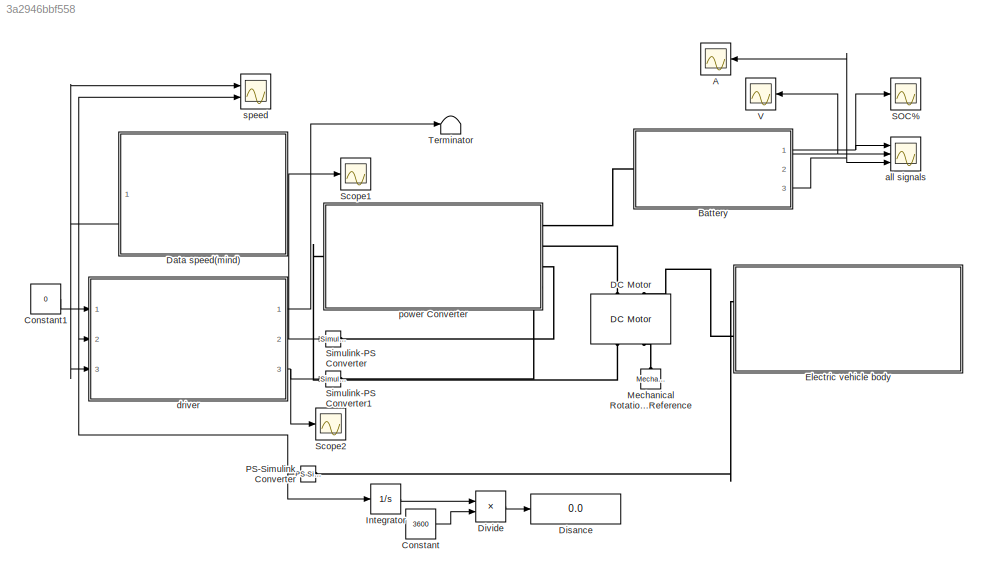
MODEL slx_3a2946bbf558
KIND model
CONFIG AbsTol = auto
CONFIG EnableMultiTasking = off
CONFIG FixedStep = auto
CONFIG MaxStep = auto
CONFIG MinStep = auto
CONFIG RelTol = 1e-3
CONFIG SampleTimeConstraint = Unconstrained
CONFIG Solver = VariableStepAuto
CONFIG SolverName = VariableStepAuto
CONFIG StartTime = 0
CONFIG StopTime = 1369
BLOCK [Scope] A
  Floating = off
  NumInputPorts = 1
  Ports = [1]
  ScopeSpecificationString = Simulink.scopes.TimeScopeBlockCfg('CurrentConfiguration', extmgr.ConfigurationSet(extmgr.Configuration('Core','General UI',true),extmgr.Configuration('Core','Source UI',true),extmgr.Configuration('Sources','WiredSimulink',true,'DataLoggingVariableName','ScopeData4'),extmgr.Configuration('Visuals','Time Domain',true,'SerializedDisplays',{struct('MinYLimReal','-437.65457','MaxYLimReal','640.14136','...<+1465ch>
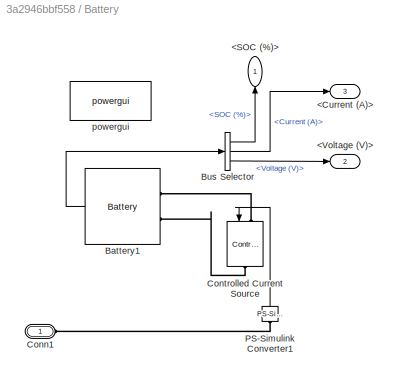
BLOCK [SubSystem] Battery
  Ports = [0, 3, 0, 0, 0, 1]
  RequestExecContextInheritance = off
BLOCK [Outport] Battery/<Current (A)>
  IconDisplay = Port number
  Port = 3
BLOCK [Outport] Battery/<SOC (%)>
  IconDisplay = Port number
BLOCK [Outport] Battery/<Voltage (V)>
  IconDisplay = Port number
  Port = 2
BLOCK [Reference] Battery/Battery1  REF=electricdrivelib/Extra Sources/Battery
  Ports = [0, 1, 0, 0, 0, 2]
  SourceBlock = electricdrivelib/Extra Sources/Battery
  SourceProductBaseCode = PS
  SourceProductName = Simscape Electrical
  SourceType = Battery
BLOCK [BusSelector] Battery/Bus Selector
  OutputAsBus = off
  OutputSignals = SOC (%),Current (A),Voltage (V)
  Ports = [1, 3]
BLOCK [PMIOPort] Battery/Conn1
  Side = Left
BLOCK [Reference] Battery/Controlled Current Source  REF=powerlib/Electrical
Sources/Controlled Current Source
  Ports = [1, 0, 0, 0, 0, 1, 1]
  SourceBlock = powerlib/Electrical\nSources/Controlled Current Source
  SourceProductBaseCode = PS
  SourceProductName = Simscape Electrical
  SourceType = Controlled Current Source
BLOCK [Reference] Battery/PS-Simulink Converter1  REF=nesl_utility/PS-Simulink
Converter
  Ports = [0, 1, 0, 0, 0, 1]
  SourceBlock = nesl_utility/PS-Simulink\nConverter
  SourceProductBaseCode = SS
  SourceProductName = Simscape
  SourceType = PS-Simulink\nConverter
BLOCK [Reference] Battery/powergui  REF=powerlib/powergui
  Ports = []
  Priority = 1
  SourceBlock = powerlib/powergui
  SourceProductBaseCode = PS
  SourceProductName = Simscape Electrical
  SourceType = PSB option menu block
BLOCK [Constant] Constant
  Value = 3600
BLOCK [Constant] Constant1
  Value = 0
BLOCK [Reference] DC Motor  REF=ee_lib/Electromechanical/Brushed Motors/DC Motor
  Ports = [0, 0, 0, 0, 0, 2, 2]
  SourceBlock = ee_lib/Electromechanical/Brushed Motors/DC Motor
  SourceProductBaseCode = PS
  SourceProductName = Simscape Electrical
  SourceType = DC Motor
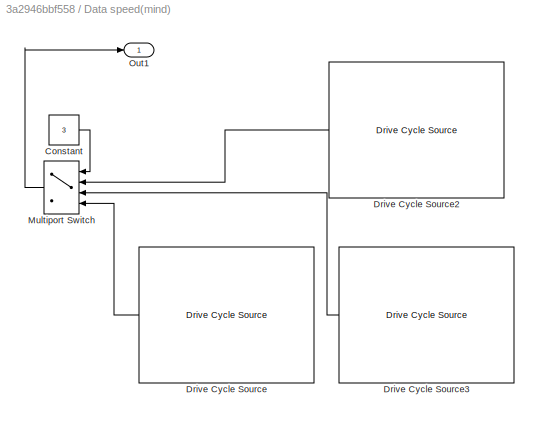
BLOCK [SubSystem] Data speed(mind)
  Ports = [0, 1]
  RequestExecContextInheritance = off
BLOCK [Constant] Data speed(mind)/Constant
  Value = 3
BLOCK [Reference] Data speed(mind)/Drive Cycle Source  REF=autolibshared/Drive Cycle Source
  AttributesFormatString = %<cycleVar> (%<tfinal>)
  Ports = [0, 1]
  SourceBlock = autolibshared/Drive Cycle Source
  SourceProductBaseCode = PW
  SourceProductName = Powertrain Blockset
  SourceType = Drive Cycle Source
BLOCK [Reference] Data speed(mind)/Drive Cycle Source2  REF=autolibshared/Drive Cycle Source
  AttributesFormatString = %<cycleVar> (%<tfinal>)
  Ports = [0, 1]
  SourceBlock = autolibshared/Drive Cycle Source
  SourceProductBaseCode = PW
  SourceProductName = Powertrain Blockset
  SourceType = Drive Cycle Source
BLOCK [Reference] Data speed(mind)/Drive Cycle Source3  REF=autolibshared/Drive Cycle Source
  AttributesFormatString = %<cycleVar> (%<tfinal>)
  Ports = [0, 1]
  SourceBlock = autolibshared/Drive Cycle Source
  SourceProductBaseCode = PW
  SourceProductName = Powertrain Blockset
  SourceType = Drive Cycle Source
BLOCK [MultiPortSwitch] Data speed(mind)/Multiport Switch
  InputSameDT = off
  Ports = [4, 1]
  SaturateOnIntegerOverflow = off
BLOCK [Outport] Data speed(mind)/Out1
  IconDisplay = Port number
BLOCK [Display] Disance
  Decimation = 1
  Ports = [1]
BLOCK [Product] Divide
  InputSameDT = off
  Inputs = */
  OutDataTypeStr = Inherit: Inherit via internal rule
  Ports = [2, 1]
  RndMeth = Floor
  SaturateOnIntegerOverflow = off
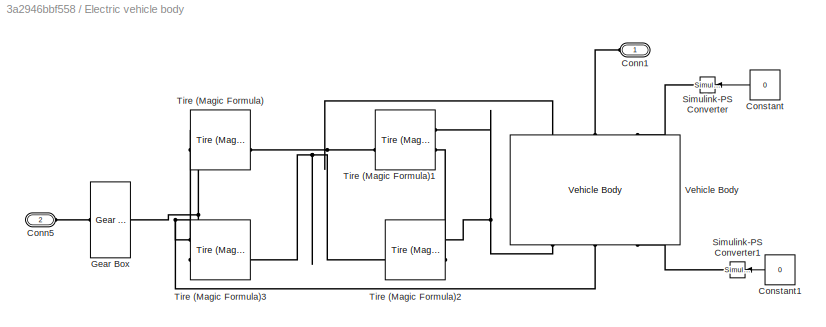
BLOCK [SubSystem] Electric vehicle body
  Ports = [0, 0, 0, 0, 0, 2]
  RequestExecContextInheritance = off
BLOCK [PMIOPort] Electric vehicle body/Conn1
  Side = Left
BLOCK [PMIOPort] Electric vehicle body/Conn5
  Port = 2
  Side = Left
BLOCK [Constant] Electric vehicle body/Constant
  Value = 0
BLOCK [Constant] Electric vehicle body/Constant1
  Value = 0
BLOCK [Reference] Electric vehicle body/Gear Box  REF=fl_lib/Mechanical/Mechanisms/Gear Box
  Ports = [0, 0, 0, 0, 0, 1, 1]
  SourceBlock = fl_lib/Mechanical/Mechanisms/Gear Box
  SourceProductBaseCode = SS
  SourceProductName = Simscape
  SourceType = Gear Box
BLOCK [Reference] Electric vehicle body/Simulink-PS Converter  REF=nesl_utility/Simulink-PS
Converter
  Ports = [1, 0, 0, 0, 0, 0, 1]
  SourceBlock = nesl_utility/Simulink-PS\nConverter
  SourceProductBaseCode = SS
  SourceProductName = Simscape
  SourceType = Simulink-PS\nConverter
BLOCK [Reference] Electric vehicle body/Simulink-PS Converter1  REF=nesl_utility/Simulink-PS
Converter
  Ports = [1, 0, 0, 0, 0, 0, 1]
  SourceBlock = nesl_utility/Simulink-PS\nConverter
  SourceProductBaseCode = SS
  SourceProductName = Simscape
  SourceType = Simulink-PS\nConverter
BLOCK [Reference] Electric vehicle body/Tire (Magic Formula)  REF=sdl_lib/Tires & Vehicles/Tire (Magic Formula)
  Ports = [0, 0, 0, 0, 0, 2, 2]
  SourceBlock = sdl_lib/Tires & Vehicles/Tire (Magic Formula)
  SourceProductBaseCode = LD
  SourceProductName = Simscape Driveline
  SourceType = Tire (Magic Formula)
BLOCK [Reference] Electric vehicle body/Tire (Magic Formula)1  REF=sdl_lib/Tires & Vehicles/Tire (Magic Formula)
  Ports = [0, 0, 0, 0, 0, 2, 2]
  SourceBlock = sdl_lib/Tires & Vehicles/Tire (Magic Formula)
  SourceProductBaseCode = LD
  SourceProductName = Simscape Driveline
  SourceType = Tire (Magic Formula)
BLOCK [Reference] Electric vehicle body/Tire (Magic Formula)2  REF=sdl_lib/Tires & Vehicles/Tire (Magic Formula)
  Ports = [0, 0, 0, 0, 0, 2, 2]
  SourceBlock = sdl_lib/Tires & Vehicles/Tire (Magic Formula)
  SourceProductBaseCode = LD
  SourceProductName = Simscape Driveline
  SourceType = Tire (Magic Formula)
BLOCK [Reference] Electric vehicle body/Tire (Magic Formula)3  REF=sdl_lib/Tires & Vehicles/Tire (Magic Formula)
  Ports = [0, 0, 0, 0, 0, 2, 2]
  SourceBlock = sdl_lib/Tires & Vehicles/Tire (Magic Formula)
  SourceProductBaseCode = LD
  SourceProductName = Simscape Driveline
  SourceType = Tire (Magic Formula)
BLOCK [Reference] Electric vehicle body/Vehicle Body  REF=sdl_lib/Tires & Vehicles/Vehicle Body
  Ports = [0, 0, 0, 0, 0, 3, 3]
  SourceBlock = sdl_lib/Tires & Vehicles/Vehicle Body
  SourceProductBaseCode = LD
  SourceProductName = Simscape Driveline
  SourceType = Vehicle Body
BLOCK [Integrator] Integrator
  Ports = [1, 1]
BLOCK [Reference] Mechanical Rotational Reference  REF=fl_lib/Mechanical/Rotational Elements/Mechanical
Rotational Reference
  Ports = [0, 0, 0, 0, 0, 1]
  SourceBlock = fl_lib/Mechanical/Rotational Elements/Mechanical\nRotational Reference
  SourceProductBaseCode = SS
  SourceProductName = Simscape
  SourceType = Mechanical\nRotational Reference
BLOCK [Reference] PS-Simulink Converter  REF=nesl_utility/PS-Simulink
Converter
  Ports = [0, 1, 0, 0, 0, 1]
  SourceBlock = nesl_utility/PS-Simulink\nConverter
  SourceProductBaseCode = SS
  SourceProductName = Simscape
  SourceType = PS-Simulink\nConverter
BLOCK [Scope] SOC%
  Floating = off
  NumInputPorts = 1
  Ports = [1]
  ScopeSpecificationString = Simulink.scopes.TimeScopeBlockCfg('CurrentConfiguration', extmgr.ConfigurationSet(extmgr.Configuration('Core','General UI',true),extmgr.Configuration('Core','Source UI',true),extmgr.Configuration('Sources','WiredSimulink',true,'DataLoggingVariableName','ScopeData2'),extmgr.Configuration('Visuals','Time Domain',true,'SerializedDisplays',{struct('MinYLimReal','55.77253','MaxYLimReal','104.91416','YL...<+1746ch>
BLOCK [Scope] Scope1
  Floating = off
  NumInputPorts = 1
  Ports = [1]
  ScopeSpecificationString = Simulink.scopes.TimeScopeBlockCfg('CurrentConfiguration', extmgr.ConfigurationSet(extmgr.Configuration('Core','General UI',true),extmgr.Configuration('Core','Source UI',true),extmgr.Configuration('Sources','WiredSimulink',true,'DataLoggingVariableName','ScopeData1'),extmgr.Configuration('Visuals','Time Domain',true,'SerializedDisplays',{struct('MinYLimReal','-0.125','MaxYLimReal','1.125','YLabelRe...<+1412ch>
BLOCK [Scope] Scope2
  Floating = off
  NumInputPorts = 1
  Ports = [1]
  ScopeSpecificationString = Simulink.scopes.TimeScopeBlockCfg('CurrentConfiguration', extmgr.ConfigurationSet(extmgr.Configuration('Core','General UI',true),extmgr.Configuration('Core','Source UI',true),extmgr.Configuration('Sources','WiredSimulink',true,'DataLoggingVariableName','ScopeData4'),extmgr.Configuration('Visuals','Time Domain',true,'SerializedDisplays',{struct('MinYLimReal','-0.11576','MaxYLimReal','1.04184','YLab...<+1468ch>
BLOCK [Reference] Simulink-PS Converter  REF=nesl_utility/Simulink-PS
Converter
  Ports = [1, 0, 0, 0, 0, 0, 1]
  SourceBlock = nesl_utility/Simulink-PS\nConverter
  SourceProductBaseCode = SS
  SourceProductName = Simscape
  SourceType = Simulink-PS\nConverter
BLOCK [Reference] Simulink-PS Converter1  REF=nesl_utility/Simulink-PS
Converter
  Ports = [1, 0, 0, 0, 0, 0, 1]
  SourceBlock = nesl_utility/Simulink-PS\nConverter
  SourceProductBaseCode = SS
  SourceProductName = Simscape
  SourceType = Simulink-PS\nConverter
BLOCK [Terminator] Terminator
BLOCK [Scope] V
  Floating = off
  NumInputPorts = 1
  Ports = [1]
  ScopeSpecificationString = Simulink.scopes.TimeScopeBlockCfg('CurrentConfiguration', extmgr.ConfigurationSet(extmgr.Configuration('Core','General UI',true),extmgr.Configuration('Core','Source UI',true),extmgr.Configuration('Sources','WiredSimulink',true,'DataLoggingVariableName','ScopeData3'),extmgr.Configuration('Visuals','Time Domain',true,'SerializedDisplays',{struct('MinYLimReal','-61.12934','MaxYLimReal','550.1549','YL...<+1436ch>
BLOCK [Scope] all signals
  Floating = off
  NumInputPorts = 3
  Ports = [3]
  ScopeSpecificationString = Simulink.scopes.TimeScopeBlockCfg('CurrentConfiguration', extmgr.ConfigurationSet(extmgr.Configuration('Core','General UI',true),extmgr.Configuration('Core','Source UI',true),extmgr.Configuration('Sources','WiredSimulink',true,'DataLoggingVariableName','ScopeData1'),extmgr.Configuration('Visuals','Time Domain',true,'SerializedDisplays',{struct('MinYLimReal','-0.92961','MaxYLimReal','111.2144','YLa...<+2738ch>
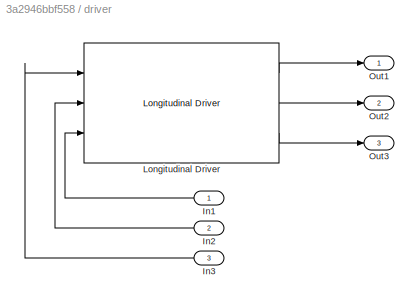
BLOCK [SubSystem] driver
  Ports = [3, 3]
  RequestExecContextInheritance = off
BLOCK [Inport] driver/In1
  IconDisplay = Port number
BLOCK [Inport] driver/In2
  IconDisplay = Port number
  Port = 2
BLOCK [Inport] driver/In3
  IconDisplay = Port number
  Port = 3
BLOCK [Reference] driver/Longitudinal Driver  REF=autolibshared/Longitudinal Driver
  Ports = [3, 3]
  SourceBlock = autolibshared/Longitudinal Driver
  SourceProductBaseCode = PW
  SourceProductName = Powertrain Blockset
  SourceType = Longitudinal Driver
BLOCK [Outport] driver/Out1
  IconDisplay = Port number
BLOCK [Outport] driver/Out2
  IconDisplay = Port number
  Port = 2
BLOCK [Outport] driver/Out3
  IconDisplay = Port number
  Port = 3
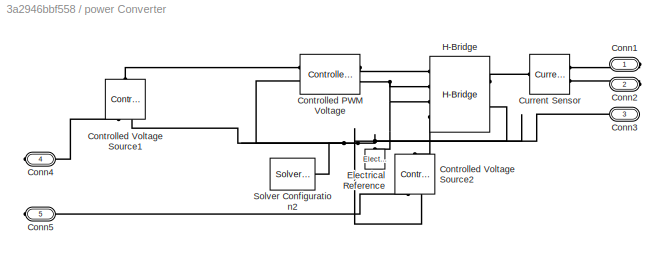
BLOCK [SubSystem] power Converter
  Ports = [0, 0, 0, 0, 0, 1, 4]
  RequestExecContextInheritance = off
BLOCK [PMIOPort] power Converter/Conn1
  Side = Right
BLOCK [PMIOPort] power Converter/Conn2
  Port = 2
  Side = Right
BLOCK [PMIOPort] power Converter/Conn3
  Port = 3
  Side = Left
BLOCK [PMIOPort] power Converter/Conn4
  Port = 4
  Side = Right
BLOCK [PMIOPort] power Converter/Conn5
  Port = 5
  Side = Right
BLOCK [Reference] power Converter/Controlled PWM Voltage  REF=ee_lib/Integrated Circuits/Controlled PWM
Voltage
  Ports = [0, 0, 0, 0, 0, 2, 2]
  SourceBlock = ee_lib/Integrated Circuits/Controlled PWM\nVoltage
  SourceProductBaseCode = PS
  SourceProductName = Simscape Electrical
  SourceType = Controlled PWM\nVoltage
BLOCK [Reference] power Converter/Controlled Voltage Source1  REF=fl_lib/Electrical/Electrical Sources/Controlled Voltage
Source
  Ports = [0, 0, 0, 0, 0, 1, 2]
  SourceBlock = fl_lib/Electrical/Electrical Sources/Controlled Voltage\nSource
  SourceProductBaseCode = SS
  SourceProductName = Simscape
  SourceType = Controlled Voltage\nSource
BLOCK [Reference] power Converter/Controlled Voltage Source2  REF=fl_lib/Electrical/Electrical Sources/Controlled Voltage
Source
  Ports = [0, 0, 0, 0, 0, 1, 2]
  SourceBlock = fl_lib/Electrical/Electrical Sources/Controlled Voltage\nSource
  SourceProductBaseCode = SS
  SourceProductName = Simscape
  SourceType = Controlled Voltage\nSource
BLOCK [Reference] power Converter/Current Sensor  REF=fl_lib/Electrical/Electrical Sensors/Current Sensor
  Ports = [0, 0, 0, 0, 0, 1, 2]
  SourceBlock = fl_lib/Electrical/Electrical Sensors/Current Sensor
  SourceProductBaseCode = SS
  SourceProductName = Simscape
  SourceType = Current Sensor
BLOCK [Reference] power Converter/Electrical Reference  REF=fl_lib/Electrical/Electrical Elements/Electrical Reference
  Ports = [0, 0, 0, 0, 0, 1]
  SourceBlock = fl_lib/Electrical/Electrical Elements/Electrical Reference
  SourceProductBaseCode = SS
  SourceProductName = Simscape
  SourceType = Electrical Reference
BLOCK [Reference] power Converter/H-Bridge  REF=ee_lib/Semiconductors &
Converters/Converters/H-Bridge
  Ports = [0, 0, 0, 0, 0, 4, 2]
  SourceBlock = ee_lib/Semiconductors &\nConverters/Converters/H-Bridge
  SourceProductBaseCode = PS
  SourceProductName = Simscape Electrical
  SourceType = H-Bridge
BLOCK [Reference] power Converter/Solver Configuration2  REF=nesl_utility/Solver
Configuration
  Ports = [0, 0, 0, 0, 0, 0, 1]
  SourceBlock = nesl_utility/Solver\nConfiguration
  SourceProductBaseCode = SS
  SourceProductName = Simscape
  SourceType = Solver\nConfiguration
BLOCK [Scope] speed
  Floating = off
  NumInputPorts = 2
  Ports = [2]
  ScopeSpecificationString = Simulink.scopes.TimeScopeBlockCfg('CurrentConfiguration', extmgr.ConfigurationSet(extmgr.Configuration('Core','General UI',true),extmgr.Configuration('Core','Source UI',true),extmgr.Configuration('Sources','WiredSimulink',true),extmgr.Configuration('Visuals','Time Domain',true,'SerializedDisplays',{struct('MinYLimReal','-7.0875','MaxYLimReal','63.7875','YLabelReal','','MinYLimMag','0.00000','MaxYL...<+1544ch>
LINE Battery/Battery1:1 -> Battery/Bus Selector:1
LINE Battery/Bus Selector:1 -> Battery/<SOC (%)>:1
LINE Battery/Bus Selector:2 -> Battery/<Current (A)>:1
LINE Battery/Bus Selector:3 -> Battery/<Voltage (V)>:1
LINE Battery/PS-Simulink Converter1:1 -> Battery/Controlled Current Source:1
NET Battery:1 -> SOC%:1, all signals:1
NET Battery:2 -> V:1, all signals:2
NET Battery:3 -> A:1, all signals:3
LINE Constant1:1 -> driver:1
LINE Constant:1 -> Divide:2
LINE Data speed(mind)/Constant:1 -> Data speed(mind)/Multiport Switch:1
LINE Data speed(mind)/Drive Cycle Source2:1 -> Data speed(mind)/Multiport Switch:2
LINE Data speed(mind)/Drive Cycle Source3:1 -> Data speed(mind)/Multiport Switch:3
LINE Data speed(mind)/Drive Cycle Source:1 -> Data speed(mind)/Multiport Switch:4
LINE Data speed(mind)/Multiport Switch:1 -> Data speed(mind)/Out1:1
NET Data speed(mind):1 -> driver:3, speed:1
LINE Divide:1 -> Disance:1
LINE Electric vehicle body/Constant1:1 -> Electric vehicle body/Simulink-PS Converter1:1
LINE Electric vehicle body/Constant:1 -> Electric vehicle body/Simulink-PS Converter:1
LINE Integrator:1 -> Divide:1
NET PS-Simulink Converter:1 -> Integrator:1, driver:2, speed:2
LINE driver/In1:1 -> driver/Longitudinal Driver:3
LINE driver/In2:1 -> driver/Longitudinal Driver:2
LINE driver/In3:1 -> driver/Longitudinal Driver:1
LINE driver/Longitudinal Driver:1 -> driver/Out1:1
LINE driver/Longitudinal Driver:2 -> driver/Out2:1
LINE driver/Longitudinal Driver:3 -> driver/Out3:1
LINE driver:1 -> Terminator:1
NET driver:2 -> Scope1:1, Simulink-PS Converter:1
NET driver:3 -> Scope2:1, Simulink-PS Converter1:1
PLINE Battery/Battery1:LConn1 -- Battery/Controlled Current Source:LConn1
PLINE Battery/Battery1:LConn2 -- Battery/Controlled Current Source:RConn1
PLINE Battery/Conn1:RConn1 -- Battery/PS-Simulink Converter1:LConn1
PLINE Battery:LConn1 -- power Converter:RConn1
PLINE DC Motor:LConn1 -- power Converter:RConn2
PLINE DC Motor:LConn2 -- Electric vehicle body:LConn2
PLINE DC Motor:RConn1 -- power Converter:LConn1
PLINE DC Motor:RConn2 -- Mechanical Rotational Reference:LConn1
PLINE Electric vehicle body/Conn1:RConn1 -- Electric vehicle body/Vehicle Body:LConn2
PLINE Electric vehicle body/Conn5:RConn1 -- Electric vehicle body/Gear Box:LConn1
PNET net1: Electric vehicle body/Gear Box:RConn1 -- Electric vehicle body/Tire (Magic Formula)3:LConn2 -- Electric vehicle body/Tire (Magic Formula):LConn2
PLINE Electric vehicle body/Simulink-PS Converter1:RConn1 -- Electric vehicle body/Vehicle Body:RConn3
PLINE Electric vehicle body/Simulink-PS Converter:RConn1 -- Electric vehicle body/Vehicle Body:LConn3
PNET net2: Electric vehicle body/Tire (Magic Formula)1:LConn1 -- Electric vehicle body/Tire (Magic Formula)2:LConn1 -- Electric vehicle body/Vehicle Body:RConn1
PLINE Electric vehicle body/Tire (Magic Formula)1:LConn2 -- Electric vehicle body/Tire (Magic Formula)2:LConn2
PNET net3: Electric vehicle body/Tire (Magic Formula)1:RConn2 -- Electric vehicle body/Tire (Magic Formula)2:RConn2 -- Electric vehicle body/Tire (Magic Formula)3:RConn2 -- Electric vehicle body/Tire (Magic Formula):RConn2 -- Electric vehicle body/Vehicle Body:LConn1
PNET net4: Electric vehicle body/Tire (Magic Formula)3:LConn1 -- Electric vehicle body/Tire (Magic Formula):LConn1 -- Electric vehicle body/Vehicle Body:RConn2
PLINE Electric vehicle body:LConn1 -- PS-Simulink Converter:LConn1
PLINE Simulink-PS Converter1:RConn1 -- power Converter:RConn4
PLINE Simulink-PS Converter:RConn1 -- power Converter:RConn3
PLINE power Converter/Conn1:RConn1 -- power Converter/Current Sensor:RConn1
PLINE power Converter/Conn2:RConn1 -- power Converter/Current Sensor:RConn2
PNET net5: power Converter/Conn3:RConn1 -- power Converter/Controlled PWM Voltage:LConn2 -- power Converter/Controlled PWM Voltage:RConn2 -- power Converter/Controlled Voltage Source1:RConn2 -- power Converter/Controlled Voltage Source2:RConn2 -- power Converter/Electrical Reference:LConn1 -- power Converter/H-Bridge:LConn2 -- power Converter/H-Bridge:LConn3 -- power Converter/H-Bridge:RConn2 -- power Converter/Solver Configuration2:RConn1
PLINE power Converter/Conn4:RConn1 -- power Converter/Controlled Voltage Source1:RConn1
PLINE power Converter/Conn5:RConn1 -- power Converter/Controlled Voltage Source2:RConn1
PLINE power Converter/Controlled PWM Voltage:LConn1 -- power Converter/Controlled Voltage Source1:LConn1
PLINE power Converter/Controlled PWM Voltage:RConn1 -- power Converter/H-Bridge:LConn1
PLINE power Converter/Controlled Voltage Source2:LConn1 -- power Converter/H-Bridge:LConn4
PLINE power Converter/Current Sensor:LConn1 -- power Converter/H-Bridge:RConn1
note: NET lines group one-source signal fan-out (src -> all destinations, sorted); 1:1 wires keep LINE; PNET lines group multi-terminal physical nets as a canonical sorted terminal list (undirected conserving connections); 2-terminal nets keep the pairwise PLINE form
